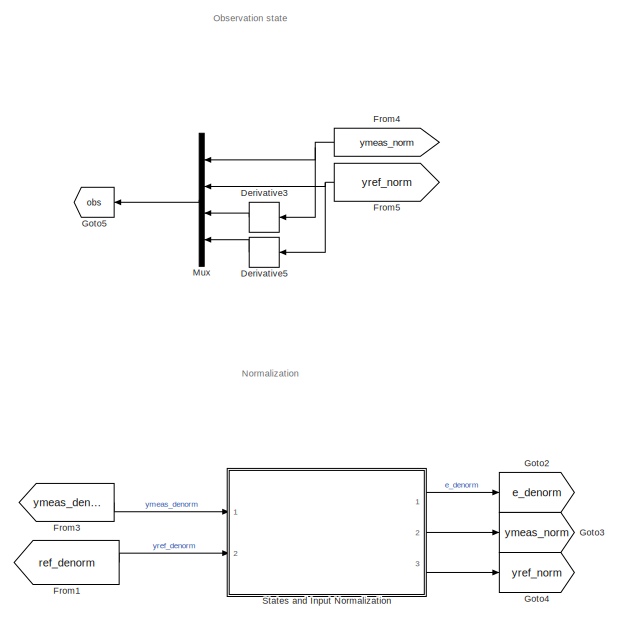
[diagram: root canvas - part 1/4, top right region]
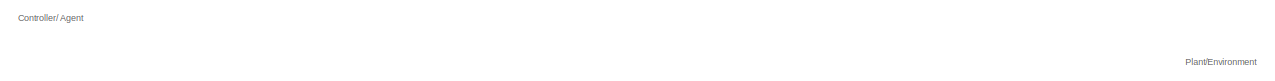
[diagram: root canvas - part 2/4, top center region]
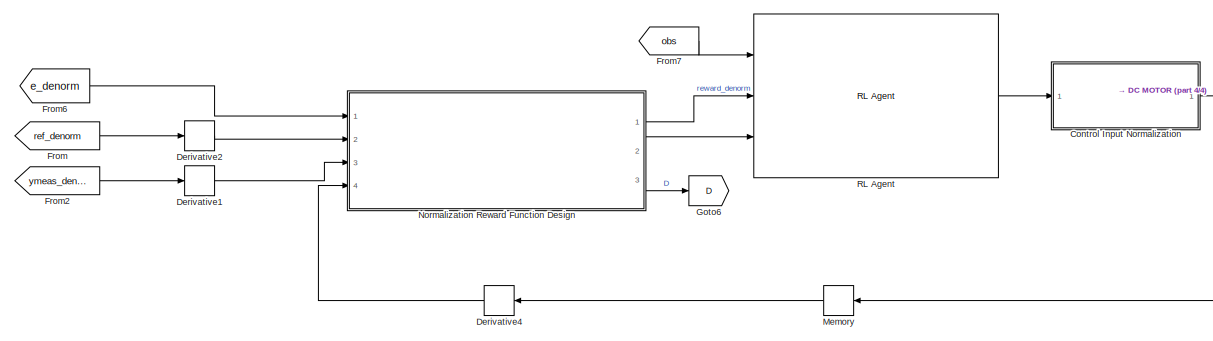
[diagram: root canvas - part 3/4, middle left region]
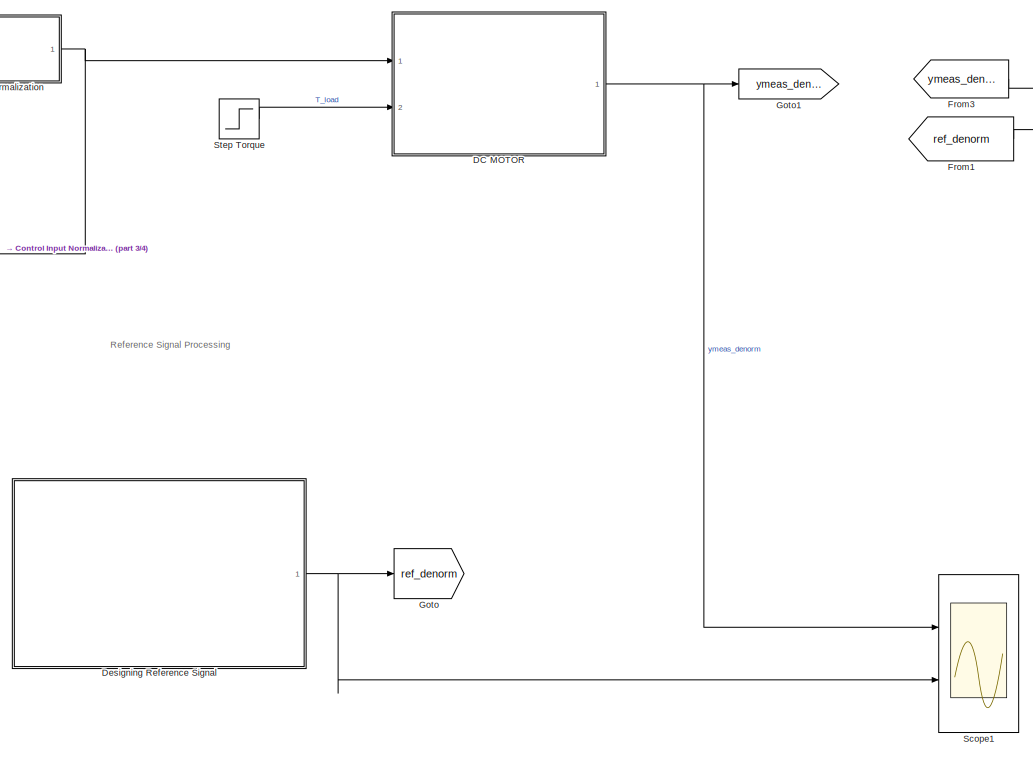
[diagram: root canvas - part 4/4, bottom center region]
MODEL slx_ffe17756b0fc
KIND model
CONFIG AbsTol = auto
CONFIG EnableMultiTasking = off
CONFIG FixedStep = auto
CONFIG MaxStep = auto
CONFIG MinStep = auto
CONFIG RelTol = 1e-3
CONFIG SampleTimeConstraint = Unconstrained
CONFIG SolverName = FixedStepAuto
CONFIG StartTime = 0.0
CONFIG StopTime = T
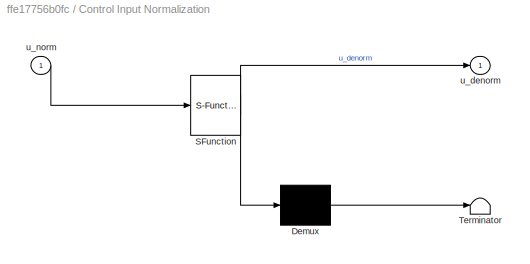
BLOCK [SubSystem] Control Input Normalization
  ErrorFcn = Stateflow.Translate.translate
  PermitHierarchicalResolution = ExplicitOnly
  Ports = [1, 1]
  RequestExecContextInheritance = off
  SFBlockType = MATLAB Function
  TreatAsAtomicUnit = on
BLOCK [Demux] Control Input Normalization/ Demux 
  Outputs = 1
  Ports = [1, 1]
BLOCK [S-Function] Control Input Normalization/ SFunction 
  EnableBusSupport = on
  FunctionName = sf_sfun
  PortCounts = [1 2]
  Ports = [1, 2]
  SFcnIsStateOwnerBlock = off
  SFunctionDeploymentMode = off
  Tag = Stateflow S-Function 3
BLOCK [Terminator] Control Input Normalization/ Terminator 
BLOCK [Outport] Control Input Normalization/u_denorm
BLOCK [Inport] Control Input Normalization/u_norm
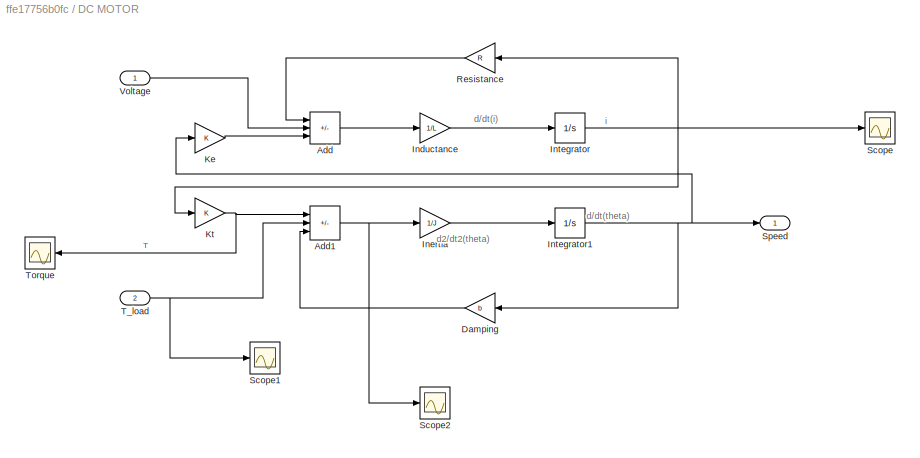
BLOCK [SubSystem] DC MOTOR
  Ports = [2, 1]
  RequestExecContextInheritance = off
BLOCK [Sum] DC MOTOR/Add
  IconShape = rectangular
  Inputs = -+-
  Ports = [3, 1]
BLOCK [Sum] DC MOTOR/Add1
  IconShape = rectangular
  Inputs = +--
  Ports = [3, 1]
BLOCK [Gain] DC MOTOR/Damping
  Gain = b
BLOCK [Gain] DC MOTOR/Inductance
  Gain = 1/L
BLOCK [Gain] DC MOTOR/Inertia
  Gain = 1/J
BLOCK [Integrator] DC MOTOR/Integrator
  Ports = [1, 1]
BLOCK [Integrator] DC MOTOR/Integrator1
  Ports = [1, 1]
BLOCK [Gain] DC MOTOR/Ke
  Gain = K
BLOCK [Gain] DC MOTOR/Kt
  Gain = K
BLOCK [Gain] DC MOTOR/Resistance
  Gain = R
BLOCK [Scope] DC MOTOR/Scope
  Floating = off
  NumInputPorts = 1
  Ports = [1]
  ScopeSpecificationString = Simulink.scopes.TimeScopeBlockCfg('CurrentConfiguration', extmgr.ConfigurationSet(extmgr.Configuration('Core','General UI',true),extmgr.Configuration('Core','Source UI',true),extmgr.Configuration('Sources','WiredSimulink',true,'DataLoggingVariableName','ScopeData1'),extmgr.Configuration('Visuals','Time Domain',true,'SerializedDisplays',{struct('MinYLimReal','-11.06862','MaxYLimReal','99.6176','YLa...<+1499ch>
BLOCK [Scope] DC MOTOR/Scope1
  Floating = off
  NumInputPorts = 1
  Ports = [1]
  ScopeSpecificationString = Simulink.scopes.TimeScopeBlockCfg('CurrentConfiguration', extmgr.ConfigurationSet(extmgr.Configuration('Core','General UI',true),extmgr.Configuration('Core','Source UI',true),extmgr.Configuration('Sources','WiredSimulink',true,'DataLoggingVariableName','ScopeData4'),extmgr.Configuration('Visuals','Time Domain',true,'SerializedDisplays',{struct('MinYLimReal','0.009','MaxYLimReal','0.011','YLabelRea...<+1347ch>
BLOCK [Scope] DC MOTOR/Scope2
  Floating = off
  NumInputPorts = 1
  Ports = [1]
  ScopeSpecificationString = Simulink.scopes.TimeScopeBlockCfg('CurrentConfiguration', extmgr.ConfigurationSet(extmgr.Configuration('Core','General UI',true),extmgr.Configuration('Core','Source UI',true),extmgr.Configuration('Sources','WiredSimulink',true,'DataLoggingVariableName','ScopeData5'),extmgr.Configuration('Visuals','Time Domain',true,'SerializedDisplays',{struct('MinYLimReal','-0.04896','MaxYLimReal','0.04064','YLab...<+1363ch>
BLOCK [Outport] DC MOTOR/Speed
BLOCK [Inport] DC MOTOR/T_load
  Port = 2
BLOCK [Scope] DC MOTOR/Torque
  Floating = off
  NameLocation = top
  NumInputPorts = 1
  Ports = [1]
  ScopeSpecificationString = Simulink.scopes.TimeScopeBlockCfg('CurrentConfiguration', extmgr.ConfigurationSet(extmgr.Configuration('Core','General UI',true),extmgr.Configuration('Core','Source UI',true),extmgr.Configuration('Sources','WiredSimulink',true,'DataLoggingVariableName','ScopeData3'),extmgr.Configuration('Visuals','Time Domain',true,'SerializedDisplays',{struct('MinYLimReal','-0.06376','MaxYLimReal','0.57387','YLab...<+1389ch>
BLOCK [Inport] DC MOTOR/Voltage
BLOCK [Derivative] Derivative1
BLOCK [Derivative] Derivative2
BLOCK [Derivative] Derivative3
  NameLocation = top
BLOCK [Derivative] Derivative4
BLOCK [Derivative] Derivative5
  NameLocation = top
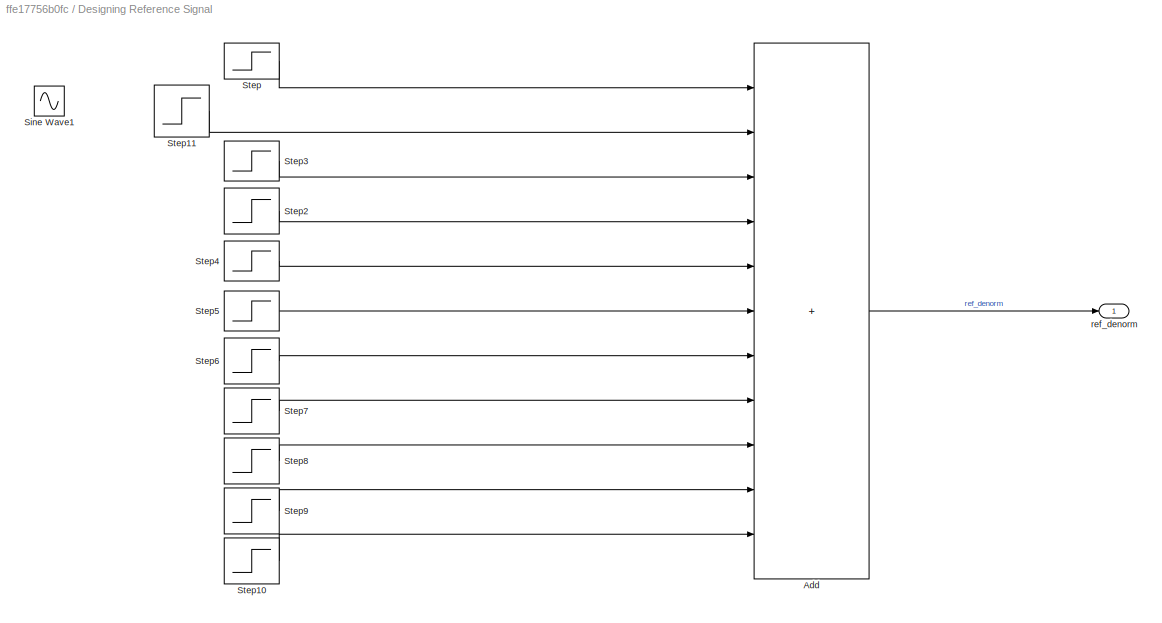
BLOCK [SubSystem] Designing Reference Signal
  Ports = [0, 1]
  RequestExecContextInheritance = off
BLOCK [Sum] Designing Reference Signal/Add
  IconShape = rectangular
  Inputs = +++++++++++
  Ports = [11, 1]
BLOCK [Sin] Designing Reference Signal/Sine Wave1
  Ports = [0, 1]
  SampleTime = 0
BLOCK [Step] Designing Reference Signal/Step
  SampleTime = Ts
  Time = 0
BLOCK [Step] Designing Reference Signal/Step10
  After = 0
  Commented = on
  SampleTime = 0
  Time = 0
BLOCK [Step] Designing Reference Signal/Step11
  SampleTime = Ts
  Time = 12
BLOCK [Step] Designing Reference Signal/Step2
  SampleTime = Ts
  Time = 36
BLOCK [Step] Designing Reference Signal/Step3
  After = 2
  SampleTime = Ts
  Time = 24
BLOCK [Step] Designing Reference Signal/Step4
  SampleTime = Ts
  Time = 48
BLOCK [Step] Designing Reference Signal/Step5
  Commented = on
  SampleTime = Ts
  Time = 50
BLOCK [Step] Designing Reference Signal/Step6
  After = 7
  Commented = on
  SampleTime = Ts
  Time = 10
BLOCK [Step] Designing Reference Signal/Step7
  Commented = on
  SampleTime = Ts
  Time = 86
BLOCK [Step] Designing Reference Signal/Step8
  After = 0
  Commented = on
  SampleTime = Ts
  Time = 160
BLOCK [Step] Designing Reference Signal/Step9
  After = 0
  Commented = on
  SampleTime = Ts
  Time = 180
BLOCK [Outport] Designing Reference Signal/ref_denorm
BLOCK [From] From
  GotoTag = ref_denorm
BLOCK [From] From1
  GotoTag = ref_denorm
BLOCK [From] From2
  GotoTag = ymeas_denorm
BLOCK [From] From3
  GotoTag = ymeas_denorm
BLOCK [From] From4
  GotoTag = ymeas_norm
  NameLocation = top
BLOCK [From] From5
  GotoTag = yref_norm
  NameLocation = top
BLOCK [From] From6
  GotoTag = e_denorm
BLOCK [From] From7
  GotoTag = obs
BLOCK [Goto] Goto
  GotoTag = ref_denorm
BLOCK [Goto] Goto1
  GotoTag = ymeas_denorm
BLOCK [Goto] Goto2
  GotoTag = e_denorm
BLOCK [Goto] Goto3
  GotoTag = ymeas_norm
BLOCK [Goto] Goto4
  GotoTag = yref_norm
BLOCK [Goto] Goto5
  GotoTag = obs
  NameLocation = top
BLOCK [Goto] Goto6
  GotoTag = D
BLOCK [Memory] Memory
  NameLocation = top
BLOCK [Mux] Mux
  DisplayOption = bar
  NameLocation = top
  Ports = [4, 1]
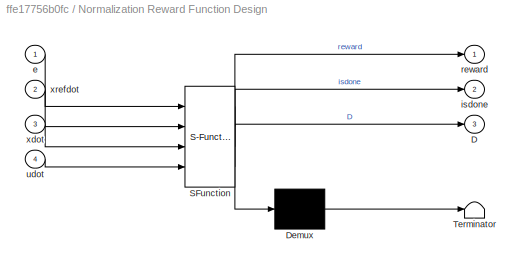
BLOCK [SubSystem] Normalization Reward Function Design
  ErrorFcn = Stateflow.Translate.translate
  PermitHierarchicalResolution = ExplicitOnly
  Ports = [4, 3]
  RequestExecContextInheritance = off
  SFBlockType = MATLAB Function
  TreatAsAtomicUnit = on
BLOCK [Demux] Normalization Reward Function Design/ Demux 
  Outputs = 1
  Ports = [1, 1]
BLOCK [S-Function] Normalization Reward Function Design/ SFunction 
  EnableBusSupport = on
  FunctionName = sf_sfun
  PortCounts = [4 4]
  Ports = [4, 4]
  SFcnIsStateOwnerBlock = off
  SFunctionDeploymentMode = off
  Tag = Stateflow S-Function 2
BLOCK [Terminator] Normalization Reward Function Design/ Terminator 
BLOCK [Outport] Normalization Reward Function Design/D
  Port = 3
BLOCK [Inport] Normalization Reward Function Design/e
BLOCK [Outport] Normalization Reward Function Design/isdone
  Port = 2
BLOCK [Outport] Normalization Reward Function Design/reward
BLOCK [Inport] Normalization Reward Function Design/udot
  Port = 4
BLOCK [Inport] Normalization Reward Function Design/xdot
  Port = 3
BLOCK [Inport] Normalization Reward Function Design/xrefdot
  Port = 2
BLOCK [Reference] RL Agent  REF=rllib/RL Agent
  Ports = [3, 1]
  SourceBlock = rllib/RL Agent
  SourceProductBaseCode = RL
  SourceType = RL Agent
BLOCK [Scope] Scope1
  Floating = off
  NumInputPorts = 2
  Ports = [2]
  ScopeSpecificationString = Simulink.scopes.TimeScopeBlockCfg('CurrentConfiguration', extmgr.ConfigurationSet(extmgr.Configuration('Core','General UI',true),extmgr.Configuration('Core','Source UI',true),extmgr.Configuration('Sources','WiredSimulink',true,'DataLoggingVariableName','ScopeData1'),extmgr.Configuration('Visuals','Time Domain',true,'SerializedDisplays',{struct('MinYLimReal','-1.22658','MaxYLimReal','11.03925','YLa...<+1484ch>
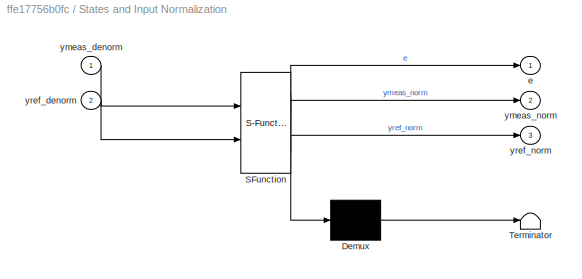
BLOCK [SubSystem] States and Input Normalization
  ErrorFcn = Stateflow.Translate.translate
  PermitHierarchicalResolution = ExplicitOnly
  Ports = [2, 3]
  RequestExecContextInheritance = off
  SFBlockType = MATLAB Function
  TreatAsAtomicUnit = on
BLOCK [Demux] States and Input Normalization/ Demux 
  Outputs = 1
  Ports = [1, 1]
BLOCK [S-Function] States and Input Normalization/ SFunction 
  EnableBusSupport = on
  FunctionName = sf_sfun
  PortCounts = [2 4]
  Ports = [2, 4]
  SFcnIsStateOwnerBlock = off
  SFunctionDeploymentMode = off
  Tag = Stateflow S-Function 5
BLOCK [Terminator] States and Input Normalization/ Terminator 
BLOCK [Outport] States and Input Normalization/e
BLOCK [Inport] States and Input Normalization/ymeas_denorm
BLOCK [Outport] States and Input Normalization/ymeas_norm
  Port = 2
BLOCK [Inport] States and Input Normalization/yref_denorm
  Port = 2
BLOCK [Outport] States and Input Normalization/yref_norm
  Port = 3
BLOCK [Step] Step Torque
  After = 0
  SampleTime = Ts
  Time = 0
ANNOTATION (root): Reference Signal Processing
ANNOTATION (root): Controller/ Agent
ANNOTATION (root): Normalization
ANNOTATION (root): Observation state
ANNOTATION (root): Plant/Environment
ANNOTATION DC MOTOR: d/dt(i)
ANNOTATION DC MOTOR: d/dt(theta)
ANNOTATION DC MOTOR: d2/dt2(theta)
ANNOTATION DC MOTOR: i
NET Control Input Normalization:1 -> DC MOTOR:1, Memory:1
NET DC MOTOR/Add1:1 -> DC MOTOR/Inertia:1, DC MOTOR/Scope2:1
LINE DC MOTOR/Add:1 -> DC MOTOR/Inductance:1
LINE DC MOTOR/Damping:1 -> DC MOTOR/Add1:3
LINE DC MOTOR/Inductance:1 -> DC MOTOR/Integrator:1
LINE DC MOTOR/Inertia:1 -> DC MOTOR/Integrator1:1
NET DC MOTOR/Integrator1:1 -> DC MOTOR/Damping:1, DC MOTOR/Ke:1, DC MOTOR/Speed:1
NET DC MOTOR/Integrator:1 -> DC MOTOR/Kt:1, DC MOTOR/Resistance:1, DC MOTOR/Scope:1
LINE DC MOTOR/Ke:1 -> DC MOTOR/Add:3
NET DC MOTOR/Kt:1 -> DC MOTOR/Add1:1, DC MOTOR/Torque:1
LINE DC MOTOR/Resistance:1 -> DC MOTOR/Add:1
NET DC MOTOR/T_load:1 -> DC MOTOR/Add1:2, DC MOTOR/Scope1:1
LINE DC MOTOR/Voltage:1 -> DC MOTOR/Add:2
NET DC MOTOR:1 -> Goto1:1, Scope1:1
LINE Derivative1:1 -> Normalization Reward Function Design:3
LINE Derivative2:1 -> Normalization Reward Function Design:2
LINE Derivative3:1 -> Mux:3
LINE Derivative4:1 -> Normalization Reward Function Design:4
LINE Derivative5:1 -> Mux:4
LINE Designing Reference Signal/Add:1 -> Designing Reference Signal/ref_denorm:1
LINE Designing Reference Signal/Step10:1 -> Designing Reference Signal/Add:11
LINE Designing Reference Signal/Step11:1 -> Designing Reference Signal/Add:2
LINE Designing Reference Signal/Step2:1 -> Designing Reference Signal/Add:4
LINE Designing Reference Signal/Step3:1 -> Designing Reference Signal/Add:3
LINE Designing Reference Signal/Step4:1 -> Designing Reference Signal/Add:5
LINE Designing Reference Signal/Step5:1 -> Designing Reference Signal/Add:6
LINE Designing Reference Signal/Step6:1 -> Designing Reference Signal/Add:7
LINE Designing Reference Signal/Step7:1 -> Designing Reference Signal/Add:8
LINE Designing Reference Signal/Step8:1 -> Designing Reference Signal/Add:9
LINE Designing Reference Signal/Step9:1 -> Designing Reference Signal/Add:10
LINE Designing Reference Signal/Step:1 -> Designing Reference Signal/Add:1
NET Designing Reference Signal:1 -> Goto:1, Scope1:2
LINE From1:1 -> States and Input Normalization:2
LINE From2:1 -> Derivative1:1
LINE From3:1 -> States and Input Normalization:1
NET From4:1 -> Derivative3:1, Mux:1
NET From5:1 -> Derivative5:1, Mux:2
LINE From6:1 -> Normalization Reward Function Design:1
LINE From7:1 -> RL Agent:1
LINE From:1 -> Derivative2:1
LINE Memory:1 -> Derivative4:1
LINE Mux:1 -> Goto5:1
LINE Normalization Reward Function Design:1 -> RL Agent:2
LINE Normalization Reward Function Design:2 -> RL Agent:3
LINE Normalization Reward Function Design:3 -> Goto6:1
LINE RL Agent:1 -> Control Input Normalization:1
LINE States and Input Normalization:1 -> Goto2:1
LINE States and Input Normalization:2 -> Goto3:1
LINE States and Input Normalization:3 -> Goto4:1
LINE Step Torque:1 -> DC MOTOR:2
note: NET lines group one-source signal fan-out (src -> all destinations, sorted); 1:1 wires keep LINE
CHART Normalization Reward Function Design states=1 transitions=1
  STATE_LABEL 'eML_blk_kernel()'
  STATE_LABEL 'SCRIPT:\nfunction [reward,isdone,D] = reward(e,xrefdot,xdot,udot)\n\n\nif (e<=0.02)&&(e>-0.02)\n    D = 100;\nelse \n    D = 0;\nend\n\ne_dot = xrefdot-xdot;\n\n% Designing Reward Function \nreward =-6*abs(e)-0.01*abs(xdot)+D;\n\n% done if succeeded the convergence\n% isdone = madeit\nisdone = 0;\n'
CHART Control Input Normalization states=1 transitions=1
  STATE_LABEL 'eML_blk_kernel()'
  STATE_LABEL 'SCRIPT:\nfunction u_denorm = fcn(u_norm)\n\nu_max = 10;\nu_min = 0;\n\n% Normalize formula\n\n% x_norm = 2*[(x - min)/(max - min)] - 1;\n\n% Denormalize formula \n\nu_denorm = [u_norm*(u_max-u_min)+u_max+u_min]/2;'
CHART States and Input Normalization states=1 transitions=1
  STATE_LABEL 'eML_blk_kernel()'
  STATE_LABEL 'SCRIPT:\n%fuction to narmalize the mesurement generated by the system and the\n%reference trajectory\nfunction [e,ymeas_norm,yref_norm] = fcn(ymeas_denorm,yref_denorm)\n\nymeas_max = 8; % (ymeas_48V  + white noise)\nymeas_min = 0; % (ymeas_0V - white noise)\n\nyref_max = 6;\nyref_min = 0;\n\n%  Normalizing between [-1,1]\n\nymeas_norm = (2*(ymeas_denorm - ymeas_min)/(ymeas_max - ymeas_min)-1);\nyref_norm = (2*(...<+203ch>'
CHART  states=0 transitions=0
CHART  states=0 transitions=0
CHART  states=0 transitions=0
